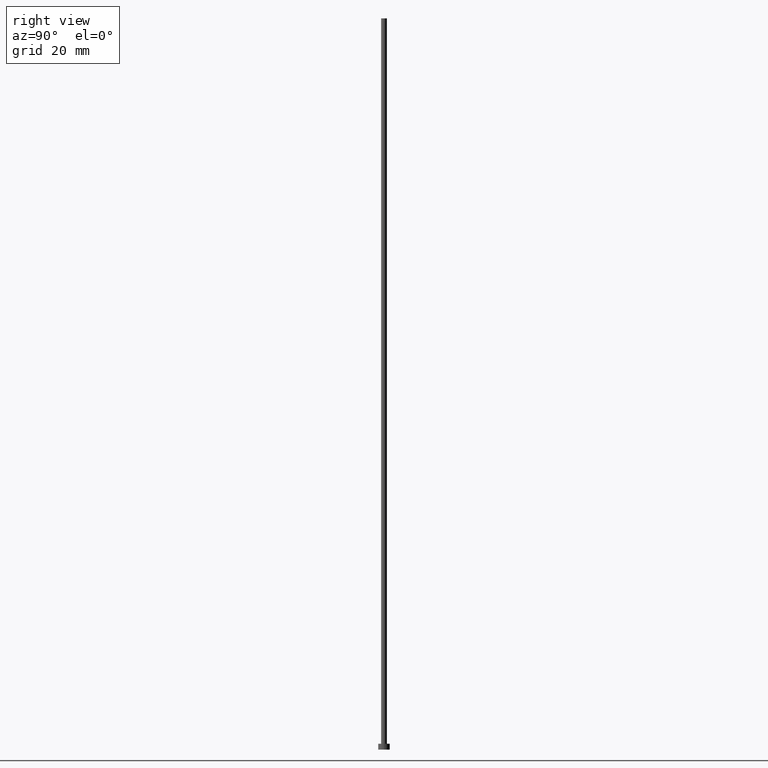
[diagram: clean part render]
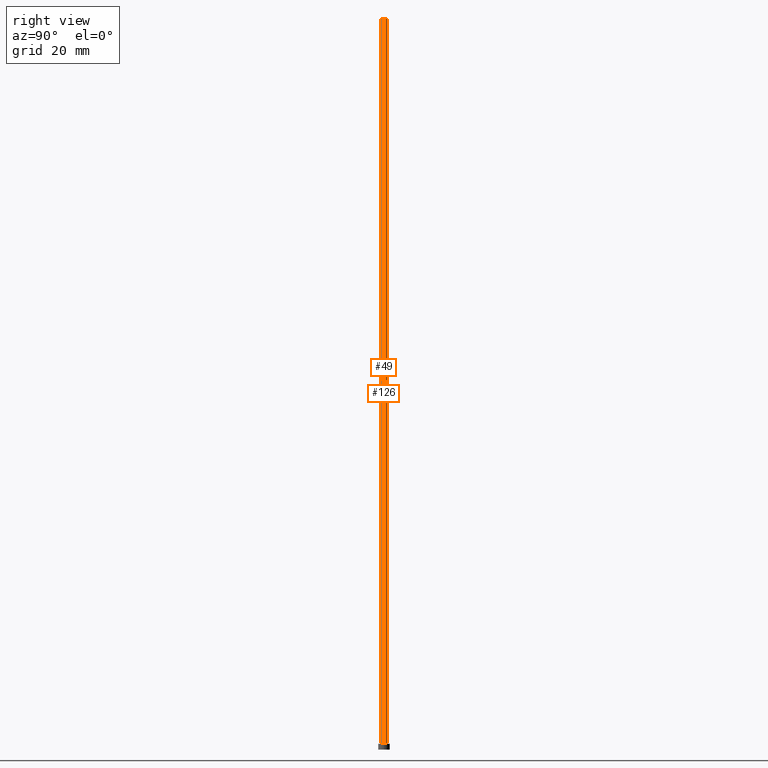
[diagram: same view with one multi-face feature highlighted, each face labeled with its STEP entity id]
A machine part, right view. The highlighted faces form ONE feature: a constant-radius fillet chain: 2 tangent blend faces with common blend radius 1 mm. The faces share edges in the B-rep.
Their STEP definitions:
[1] entity #49 (Cylinder):
#3 = DIRECTION ( 'NONE',  ( -0.000000000000000000, -0.000000000000000000, -1.000000000000000000 ) ) ;
#11 = AXIS2_PLACEMENT_3D ( 'NONE', #186, #145, #88 ) ;
#15 = EDGE_CURVE ( 'NONE', #103, #105, #120, .T. ) ;
#22 = CYLINDRICAL_SURFACE ( 'NONE', #100, 1.000000000000000000 ) ;
#29 = DIRECTION ( 'NONE',  ( -1.000000000000000000, 0.000000000000000000, 0.000000000000000000 ) ) ;
#35 = DIRECTION ( 'NONE',  ( -0.000000000000000000, -0.000000000000000000, -1.000000000000000000 ) ) ;
#49 = ADVANCED_FACE ( 'NONE', ( #225 ), #22, .T. ) ;
#50 = DIRECTION ( 'NONE',  ( 1.000000000000000000, 0.000000000000000000, 0.000000000000000000 ) ) ;
#69 = VECTOR ( 'NONE', #35, 1000.000000000000000 ) ;
#80 = AXIS2_PLACEMENT_3D ( 'NONE', #93, #213, #50 ) ;
#82 = EDGE_CURVE ( 'NONE', #135, #103, #171, .T. ) ;
#88 = DIRECTION ( 'NONE',  ( 1.000000000000000000, 0.000000000000000000, 0.000000000000000000 ) ) ;
#92 = CARTESIAN_POINT ( 'NONE',  ( -1.000000000000000000, 0.000000000000000000, 2.000000000000000000 ) ) ;
#93 = CARTESIAN_POINT ( 'NONE',  ( 0.000000000000000000, 0.000000000000000000, 250.0000000000000000 ) ) ;
#95 = ORIENTED_EDGE ( 'NONE', *, *, #146, .F. ) ;
#100 = AXIS2_PLACEMENT_3D ( 'NONE', #188, #3, #29 ) ;
#103 = VERTEX_POINT ( 'NONE', #92 ) ;
#105 = VERTEX_POINT ( 'NONE', #123 ) ;
#117 = LINE ( 'NONE', #130, #69 ) ;
#120 = CIRCLE ( 'NONE', #11, 1.000000000000000000 ) ;
#121 = ORIENTED_EDGE ( 'NONE', *, *, #82, .T. ) ;
#123 = CARTESIAN_POINT ( 'NONE',  ( 1.000000000000000000, 1.224646799147353207E-16, 2.000000000000000000 ) ) ;
#130 = CARTESIAN_POINT ( 'NONE',  ( 1.000000000000000000, 1.224646799147353207E-16, 250.0000000000000000 ) ) ;
#132 = CARTESIAN_POINT ( 'NONE',  ( 1.000000000000000000, 1.224646799147353207E-16, 250.0000000000000000 ) ) ;
#135 = VERTEX_POINT ( 'NONE', #222 ) ;
#137 = ORIENTED_EDGE ( 'NONE', *, *, #15, .T. ) ;
#138 = VECTOR ( 'NONE', #164, 1000.000000000000000 ) ;
#145 = DIRECTION ( 'NONE',  ( 0.000000000000000000, 0.000000000000000000, 1.000000000000000000 ) ) ;
#146 = EDGE_CURVE ( 'NONE', #135, #207, #170, .T. ) ;
#155 = ORIENTED_EDGE ( 'NONE', *, *, #178, .F. ) ;
#161 = EDGE_LOOP ( 'NONE', ( #155, #95, #121, #137 ) ) ;
#164 = DIRECTION ( 'NONE',  ( -0.000000000000000000, -0.000000000000000000, -1.000000000000000000 ) ) ;
#170 = CIRCLE ( 'NONE', #80, 1.000000000000000000 ) ;
#171 = LINE ( 'NONE', #242, #138 ) ;
#178 = EDGE_CURVE ( 'NONE', #207, #105, #117, .T. ) ;
#186 = CARTESIAN_POINT ( 'NONE',  ( 0.000000000000000000, 0.000000000000000000, 2.000000000000000000 ) ) ;
#188 = CARTESIAN_POINT ( 'NONE',  ( 0.000000000000000000, 0.000000000000000000, 250.0000000000000000 ) ) ;
#207 = VERTEX_POINT ( 'NONE', #132 ) ;
#213 = DIRECTION ( 'NONE',  ( 0.000000000000000000, 0.000000000000000000, 1.000000000000000000 ) ) ;
#222 = CARTESIAN_POINT ( 'NONE',  ( -1.000000000000000000, 0.000000000000000000, 250.0000000000000000 ) ) ;
#225 = FACE_OUTER_BOUND ( 'NONE', #161, .T. ) ;
#242 = CARTESIAN_POINT ( 'NONE',  ( -1.000000000000000000, 0.000000000000000000, 250.0000000000000000 ) ) ;
[2] entity #126 (Cylinder):
#7 = EDGE_LOOP ( 'NONE', ( #10, #236, #202, #19 ) ) ;
#10 = ORIENTED_EDGE ( 'NONE', *, *, #122, .F. ) ;
#19 = ORIENTED_EDGE ( 'NONE', *, *, #82, .F. ) ;
#35 = DIRECTION ( 'NONE',  ( -0.000000000000000000, -0.000000000000000000, -1.000000000000000000 ) ) ;
#38 = CIRCLE ( 'NONE', #59, 1.000000000000000000 ) ;
#45 = CYLINDRICAL_SURFACE ( 'NONE', #245, 1.000000000000000000 ) ;
#56 = CIRCLE ( 'NONE', #94, 1.000000000000000000 ) ;
#59 = AXIS2_PLACEMENT_3D ( 'NONE', #244, #85, #66 ) ;
#66 = DIRECTION ( 'NONE',  ( 1.000000000000000000, 0.000000000000000000, 0.000000000000000000 ) ) ;
#69 = VECTOR ( 'NONE', #35, 1000.000000000000000 ) ;
#82 = EDGE_CURVE ( 'NONE', #135, #103, #171, .T. ) ;
#85 = DIRECTION ( 'NONE',  ( 0.000000000000000000, 0.000000000000000000, 1.000000000000000000 ) ) ;
#92 = CARTESIAN_POINT ( 'NONE',  ( -1.000000000000000000, 0.000000000000000000, 2.000000000000000000 ) ) ;
#94 = AXIS2_PLACEMENT_3D ( 'NONE', #247, #154, #228 ) ;
#103 = VERTEX_POINT ( 'NONE', #92 ) ;
#105 = VERTEX_POINT ( 'NONE', #123 ) ;
#113 = DIRECTION ( 'NONE',  ( -0.000000000000000000, -0.000000000000000000, -1.000000000000000000 ) ) ;
#117 = LINE ( 'NONE', #130, #69 ) ;
#122 = EDGE_CURVE ( 'NONE', #207, #135, #38, .T. ) ;
#123 = CARTESIAN_POINT ( 'NONE',  ( 1.000000000000000000, 1.224646799147353207E-16, 2.000000000000000000 ) ) ;
#126 = ADVANCED_FACE ( 'NONE', ( #243 ), #45, .T. ) ;
#128 = CARTESIAN_POINT ( 'NONE',  ( 0.000000000000000000, 0.000000000000000000, 250.0000000000000000 ) ) ;
#130 = CARTESIAN_POINT ( 'NONE',  ( 1.000000000000000000, 1.224646799147353207E-16, 250.0000000000000000 ) ) ;
#132 = CARTESIAN_POINT ( 'NONE',  ( 1.000000000000000000, 1.224646799147353207E-16, 250.0000000000000000 ) ) ;
#135 = VERTEX_POINT ( 'NONE', #222 ) ;
#138 = VECTOR ( 'NONE', #164, 1000.000000000000000 ) ;
#141 = EDGE_CURVE ( 'NONE', #105, #103, #56, .T. ) ;
#154 = DIRECTION ( 'NONE',  ( 0.000000000000000000, 0.000000000000000000, 1.000000000000000000 ) ) ;
#164 = DIRECTION ( 'NONE',  ( -0.000000000000000000, -0.000000000000000000, -1.000000000000000000 ) ) ;
#171 = LINE ( 'NONE', #242, #138 ) ;
#178 = EDGE_CURVE ( 'NONE', #207, #105, #117, .T. ) ;
#190 = DIRECTION ( 'NONE',  ( -1.000000000000000000, 0.000000000000000000, 0.000000000000000000 ) ) ;
#202 = ORIENTED_EDGE ( 'NONE', *, *, #141, .T. ) ;
#207 = VERTEX_POINT ( 'NONE', #132 ) ;
#222 = CARTESIAN_POINT ( 'NONE',  ( -1.000000000000000000, 0.000000000000000000, 250.0000000000000000 ) ) ;
#228 = DIRECTION ( 'NONE',  ( 1.000000000000000000, 0.000000000000000000, 0.000000000000000000 ) ) ;
#236 = ORIENTED_EDGE ( 'NONE', *, *, #178, .T. ) ;
#242 = CARTESIAN_POINT ( 'NONE',  ( -1.000000000000000000, 0.000000000000000000, 250.0000000000000000 ) ) ;
#243 = FACE_OUTER_BOUND ( 'NONE', #7, .T. ) ;
#244 = CARTESIAN_POINT ( 'NONE',  ( 0.000000000000000000, 0.000000000000000000, 250.0000000000000000 ) ) ;
#245 = AXIS2_PLACEMENT_3D ( 'NONE', #128, #113, #190 ) ;
#247 = CARTESIAN_POINT ( 'NONE',  ( 0.000000000000000000, 0.000000000000000000, 2.000000000000000000 ) ) ;